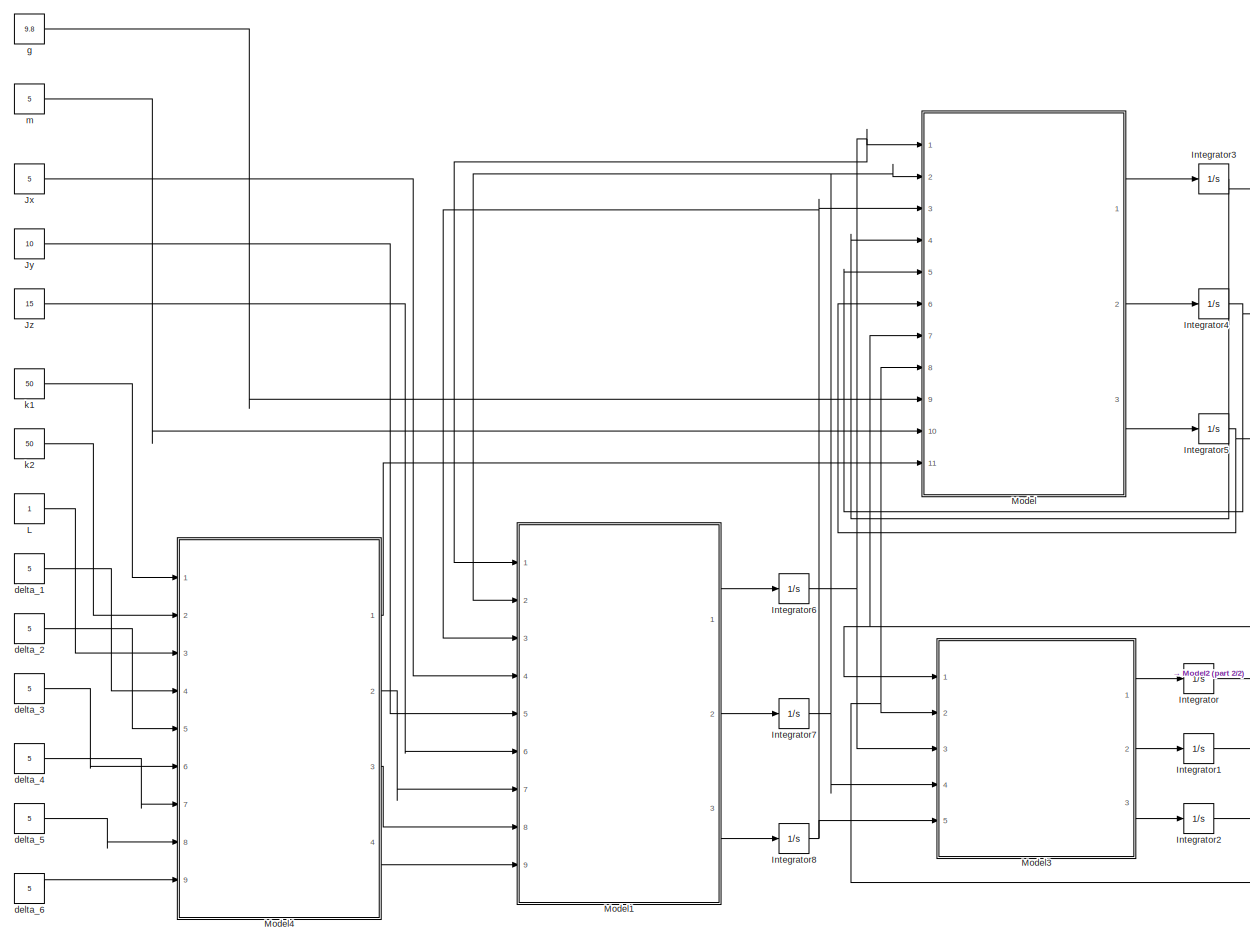
[diagram: root canvas - part 1/2, center side, full height]
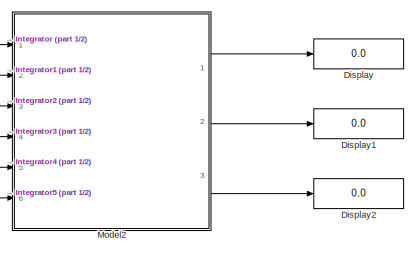
[diagram: root canvas - part 2/2, bottom right region]
MODEL slx_cf6e104fca7e
KIND model
CONFIG AbsTol = auto
CONFIG EnableMultiTasking = off
CONFIG FixedStep = auto
CONFIG MaxStep = auto
CONFIG MinStep = auto
CONFIG RelTol = 1e-3
CONFIG SampleTimeConstraint = Unconstrained
CONFIG Solver = VariableStepAuto
CONFIG SolverName = VariableStepAuto
CONFIG StartTime = 0.0
CONFIG StopTime = 10.0
BLOCK [Display] Display
  Decimation = 1
  Ports = [1]
BLOCK [Display] Display1
  Decimation = 1
  Ports = [1]
BLOCK [Display] Display2
  Decimation = 1
  Ports = [1]
BLOCK [Integrator] Integrator
  Ports = [1, 1]
BLOCK [Integrator] Integrator1
  Ports = [1, 1]
BLOCK [Integrator] Integrator2
  Ports = [1, 1]
BLOCK [Integrator] Integrator3
  Ports = [1, 1]
BLOCK [Integrator] Integrator4
  Ports = [1, 1]
BLOCK [Integrator] Integrator5
  Ports = [1, 1]
BLOCK [Integrator] Integrator6
  Ports = [1, 1]
BLOCK [Integrator] Integrator7
  Ports = [1, 1]
BLOCK [Integrator] Integrator8
  Ports = [1, 1]
BLOCK [Constant] Jx
  Value = 5
BLOCK [Constant] Jy
  Value = 10
BLOCK [Constant] Jz
  Value = 15
BLOCK [Constant] L
BLOCK [ModelReference] Model
  ModelNameDialog = Newton_Euler_Translational_Motion.slx
  ModelReferenceVersion = 1.2
  Ports = [11, 3]
BLOCK [ModelReference] Model1
  ModelNameDialog = Newton_Euler_Rotational_Motion.slx
  ModelReferenceVersion = 1.1
  Ports = [9, 3]
BLOCK [ModelReference] Model2
  ModelNameDialog = Linear_Frame_Conversion_to_Inertia.slx
  ModelReferenceVersion = 1.8
  Ports = [6, 3]
BLOCK [ModelReference] Model3
  ModelNameDialog = Angular_Frame_Conversion_to_Inertia.slx
  ModelReferenceVersion = 1.10
  Ports = [5, 3]
BLOCK [ModelReference] Model4
  ModelNameDialog = Force_and_Torque.slx
  ModelReferenceVersion = 1.4
  Ports = [9, 4]
BLOCK [Constant] delta_1
  Value = 5
BLOCK [Constant] delta_2
  Value = 5
BLOCK [Constant] delta_3
  Value = 5
BLOCK [Constant] delta_4
  Value = 5
BLOCK [Constant] delta_5
  Value = 5
BLOCK [Constant] delta_6
  Value = 5
BLOCK [Constant] g
  Value = 9.8
BLOCK [Constant] k1
  Value = 50
BLOCK [Constant] k2
  Value = 50
BLOCK [Constant] m
  Value = 5
NET Integrator1:1 -> Model2:2, Model3:2, Model:8
LINE Integrator2:1 -> Model2:3
NET Integrator3:1 -> Model2:4, Model:4
NET Integrator4:1 -> Model2:5, Model:5
NET Integrator5:1 -> Model2:6, Model:6
NET Integrator6:1 -> Model1:1, Model3:3, Model:1
NET Integrator7:1 -> Model1:2, Model3:4, Model:2
NET Integrator8:1 -> Model1:3, Model3:5, Model:3
NET Integrator:1 -> Model2:1, Model3:1, Model:7
LINE Jx:1 -> Model1:4
LINE Jy:1 -> Model1:5
LINE Jz:1 -> Model1:6
LINE L:1 -> Model4:3
LINE Model1:1 -> Integrator6:1
LINE Model1:2 -> Integrator7:1
LINE Model1:3 -> Integrator8:1
LINE Model2:1 -> Display:1
LINE Model2:2 -> Display1:1
LINE Model2:3 -> Display2:1
LINE Model3:1 -> Integrator:1
LINE Model3:2 -> Integrator1:1
LINE Model3:3 -> Integrator2:1
LINE Model4:1 -> Model:11
LINE Model4:2 -> Model1:7
LINE Model4:3 -> Model1:8
LINE Model4:4 -> Model1:9
LINE Model:1 -> Integrator3:1
LINE Model:2 -> Integrator4:1
LINE Model:3 -> Integrator5:1
LINE delta_1:1 -> Model4:4
LINE delta_2:1 -> Model4:5
LINE delta_3:1 -> Model4:6
LINE delta_4:1 -> Model4:7
LINE delta_5:1 -> Model4:8
LINE delta_6:1 -> Model4:9
LINE g:1 -> Model:9
LINE k1:1 -> Model4:1
LINE k2:1 -> Model4:2
LINE m:1 -> Model:10
note: NET lines group one-source signal fan-out (src -> all destinations, sorted); 1:1 wires keep LINE
